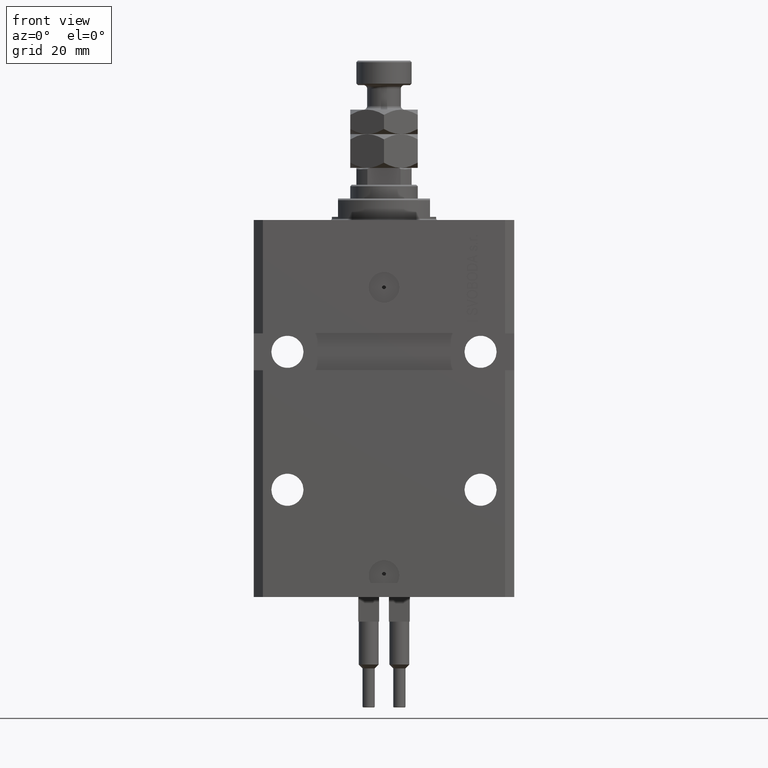
[diagram: clean part render]
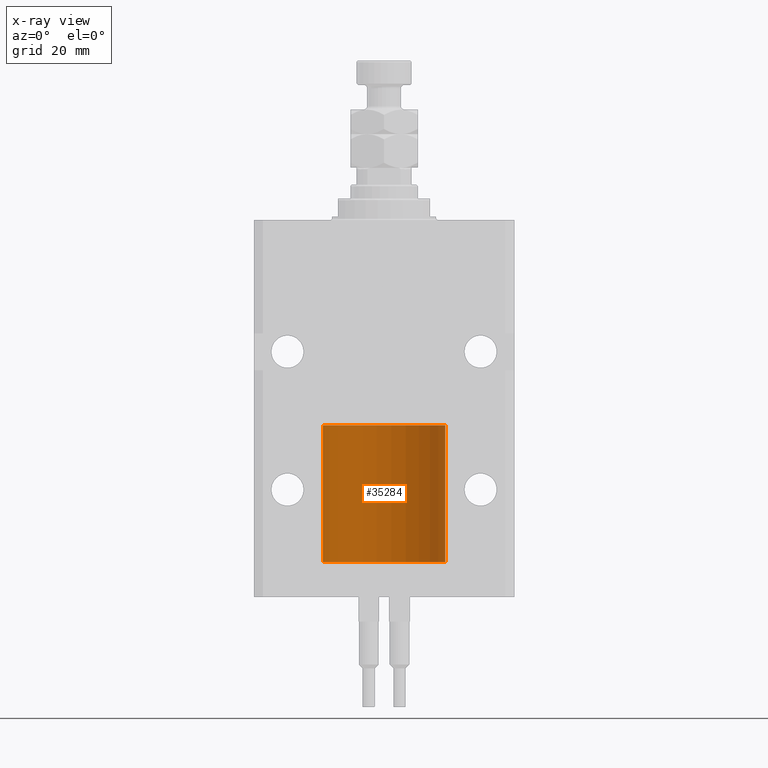
[diagram: x-ray — body ghosted, one internal face saturated and labeled with its STEP entity id]
A machine part, front view, then the same camera in x-ray: the body is ghosted and one INTERNAL B-rep face — a face not visible from any outside direction — is saturated and labeled: STEP entity #35284.
In plain terms, the highlighted cylindrical surface (partial cylindrical patch) has radius 20 mm, axis along (-0, -0, -1).
Its self-contained STEP definition (entity closure, byte-faithful):
#655 = LINE ( 'NONE', #24702, #40215 ) ;
#1486 = CARTESIAN_POINT ( 'NONE',  ( 20.00000000000000000, 2.449293598294706513E-15, 44.60000000000000142 ) ) ;
#5054 = DIRECTION ( 'NONE',  ( -0.000000000000000000, -0.000000000000000000, -1.000000000000000000 ) ) ;
#5276 = VECTOR ( 'NONE', #9504, 1000.000000000000000 ) ;
#9504 = DIRECTION ( 'NONE',  ( -0.000000000000000000, -0.000000000000000000, -1.000000000000000000 ) ) ;
#12734 = EDGE_CURVE ( 'NONE', #48648, #41379, #44692, .T. ) ;
#16140 = CIRCLE ( 'NONE', #41755, 20.00000000000000000 ) ;
#16247 = ORIENTED_EDGE ( 'NONE', *, *, #12734, .T. ) ;
#18106 = CIRCLE ( 'NONE', #22246, 20.00000000000000000 ) ;
#18224 = ORIENTED_EDGE ( 'NONE', *, *, #40731, .T. ) ;
#19847 = CARTESIAN_POINT ( 'NONE',  ( 0.000000000000000000, 0.000000000000000000, 44.60000000000000142 ) ) ;
#22246 = AXIS2_PLACEMENT_3D ( 'NONE', #43170, #28409, #35150 ) ;
#23524 = VERTEX_POINT ( 'NONE', #41010 ) ;
#24298 = CARTESIAN_POINT ( 'NONE',  ( 20.00000000000000000, 2.449293598294706513E-15, 0.000000000000000000 ) ) ;
#24702 = CARTESIAN_POINT ( 'NONE',  ( -20.00000000000000000, 0.000000000000000000, 44.60000000000000142 ) ) ;
#26104 = CARTESIAN_POINT ( 'NONE',  ( 20.00000000000000000, 2.449293598294706513E-15, 44.60000000000000142 ) ) ;
#27482 = DIRECTION ( 'NONE',  ( 0.000000000000000000, 0.000000000000000000, 1.000000000000000000 ) ) ;
#28409 = DIRECTION ( 'NONE',  ( 0.000000000000000000, 0.000000000000000000, 1.000000000000000000 ) ) ;
#31232 = CYLINDRICAL_SURFACE ( 'NONE', #39413, 20.00000000000000000 ) ;
#32834 = EDGE_LOOP ( 'NONE', ( #48635, #16247, #18224, #42518 ) ) ;
#35004 = DIRECTION ( 'NONE',  ( 1.000000000000000000, 0.000000000000000000, 0.000000000000000000 ) ) ;
#35150 = DIRECTION ( 'NONE',  ( 1.000000000000000000, 0.000000000000000000, 0.000000000000000000 ) ) ;
#35284 = ADVANCED_FACE ( 'NONE', ( #47510 ), #31232, .T. ) ;
#35384 = CARTESIAN_POINT ( 'NONE',  ( -20.00000000000000000, 0.000000000000000000, 0.000000000000000000 ) ) ;
#37373 = VERTEX_POINT ( 'NONE', #35384 ) ;
#39413 = AXIS2_PLACEMENT_3D ( 'NONE', #19847, #47012, #50368 ) ;
#40215 = VECTOR ( 'NONE', #5054, 1000.000000000000000 ) ;
#40317 = EDGE_CURVE ( 'NONE', #48648, #23524, #18106, .T. ) ;
#40731 = EDGE_CURVE ( 'NONE', #41379, #37373, #16140, .T. ) ;
#41010 = CARTESIAN_POINT ( 'NONE',  ( -20.00000000000000000, 0.000000000000000000, 44.60000000000000142 ) ) ;
#41379 = VERTEX_POINT ( 'NONE', #24298 ) ;
#41755 = AXIS2_PLACEMENT_3D ( 'NONE', #50750, #27482, #35004 ) ;
#42518 = ORIENTED_EDGE ( 'NONE', *, *, #43456, .F. ) ;
#43170 = CARTESIAN_POINT ( 'NONE',  ( 0.000000000000000000, 0.000000000000000000, 44.60000000000000142 ) ) ;
#43456 = EDGE_CURVE ( 'NONE', #23524, #37373, #655, .T. ) ;
#44692 = LINE ( 'NONE', #1486, #5276 ) ;
#47012 = DIRECTION ( 'NONE',  ( -0.000000000000000000, -0.000000000000000000, -1.000000000000000000 ) ) ;
#47510 = FACE_OUTER_BOUND ( 'NONE', #32834, .T. ) ;
#48635 = ORIENTED_EDGE ( 'NONE', *, *, #40317, .F. ) ;
#48648 = VERTEX_POINT ( 'NONE', #26104 ) ;
#50368 = DIRECTION ( 'NONE',  ( -1.000000000000000000, 0.000000000000000000, 0.000000000000000000 ) ) ;
#50750 = CARTESIAN_POINT ( 'NONE',  ( 0.000000000000000000, 0.000000000000000000, 0.000000000000000000 ) ) ;